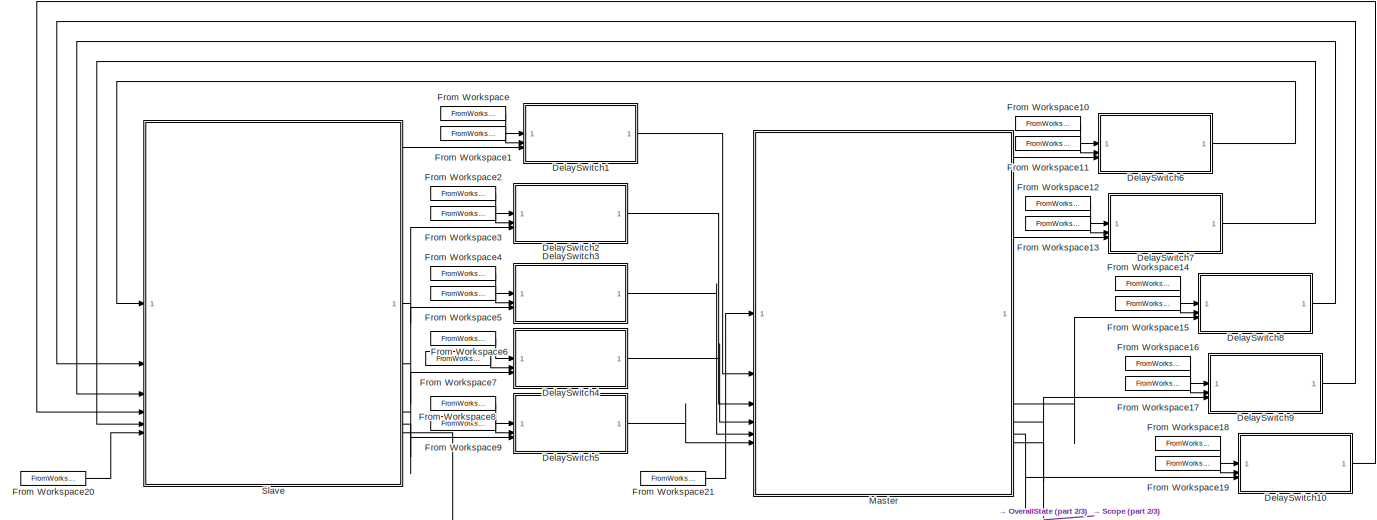
[diagram: root canvas - part 1/3, top center region]
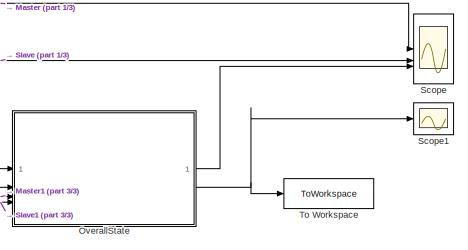
[diagram: root canvas - part 2/3, middle right region]
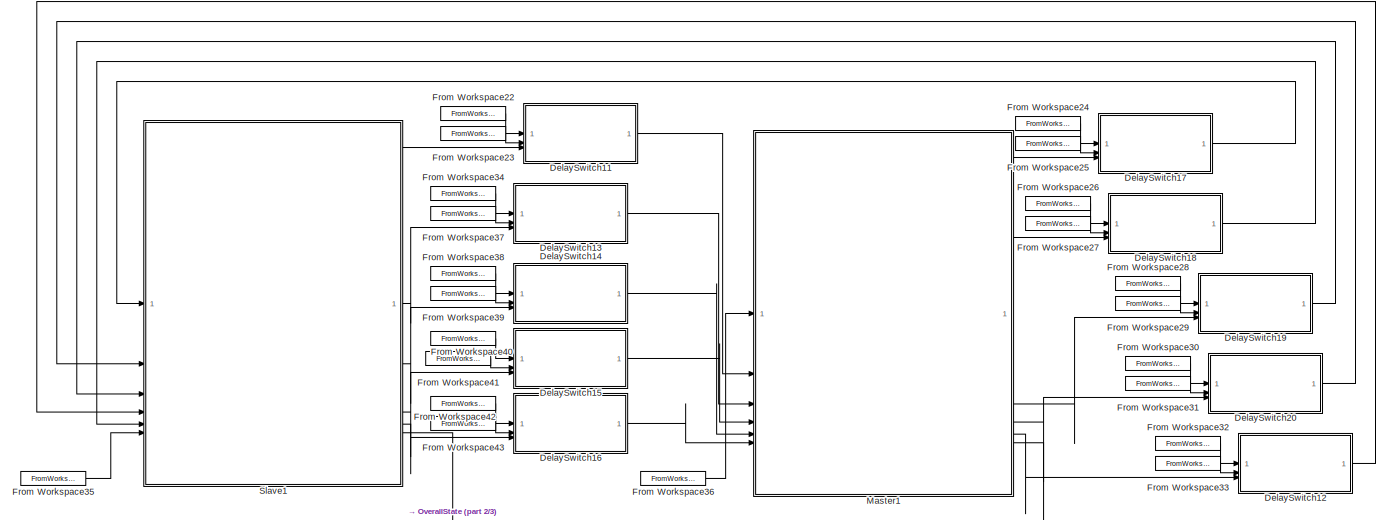
[diagram: root canvas - part 3/3, bottom center region]
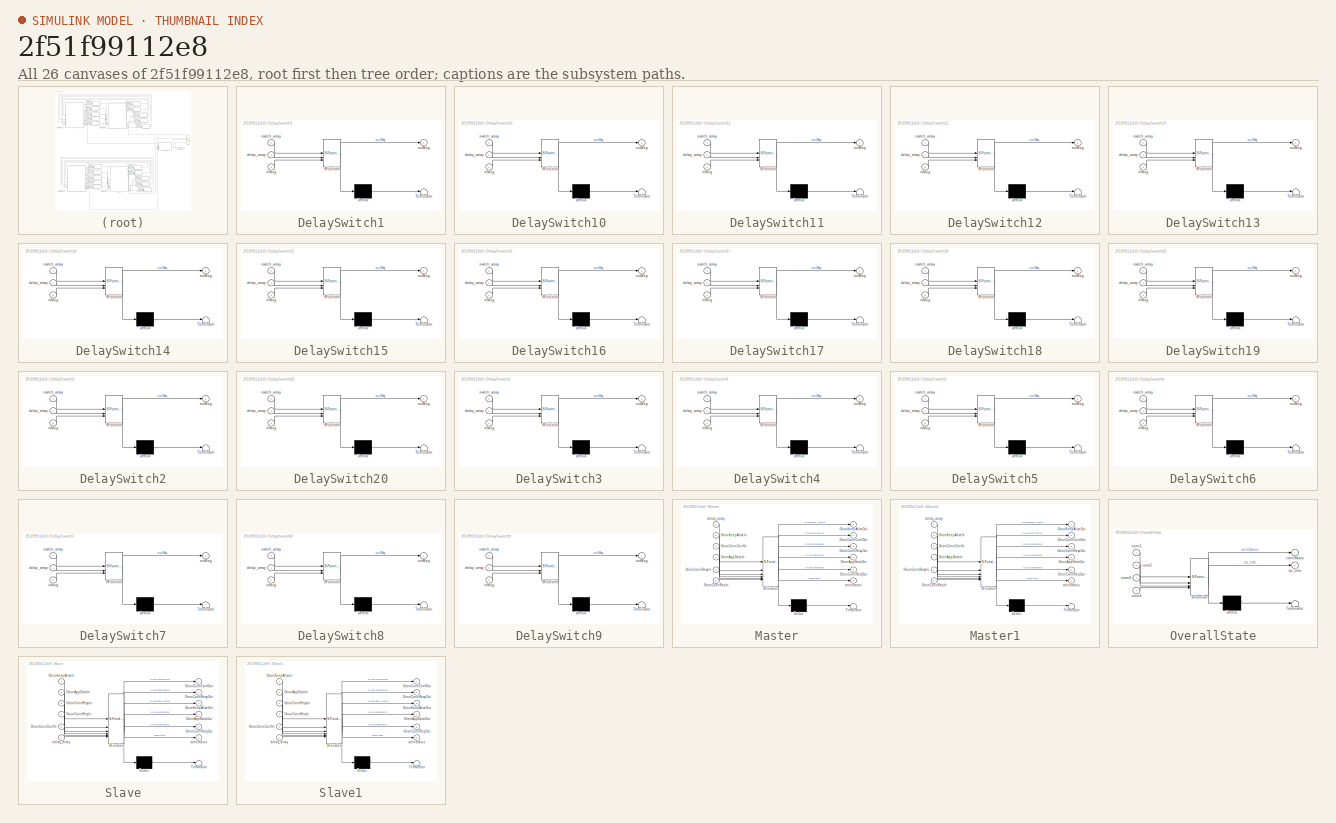
[diagram: thumbnail index - all 26 canvases of the model, root first then tree order]
MODEL slx_2f51f99112e8
KIND model
CONFIG AbsTol = auto
CONFIG EnableMultiTasking = off
CONFIG FixedStep = auto
CONFIG InitFcn = RandStream.setGlobalStream(RandStream('mt19937ar','seed',sum(100*clock)));
CONFIG MaxStep = auto
CONFIG MinStep = auto
CONFIG RelTol = 1e-3
CONFIG SampleTimeConstraint = Unconstrained
CONFIG SolverName = VariableStepAuto
CONFIG StartTime = 0.0
CONFIG StopTime = 30
BLOCK [SubSystem] DelaySwitch1
  ErrorFcn = Stateflow.Translate.translate
  PermitHierarchicalResolution = ExplicitOnly
  SFBlockType = Chart
  TreatAsAtomicUnit = on
BLOCK [Demux] DelaySwitch1/ Demux 
  Outputs = 1
BLOCK [S-Function] DelaySwitch1/ SFunction 
  EnableBusSupport = on
  FunctionName = sf_sfun
  InputPortMessageModes = n,n,m
  OutputPortMessageModes = n,m
  PortCounts = [3 2]
  SFcnIsStateOwnerBlock = off
  SFunctionDeploymentMode = off
  Tag = Stateflow S-Function 1
BLOCK [Terminator] DelaySwitch1/ Terminator 
BLOCK [Inport] DelaySwitch1/delay_array
  Port = 2
BLOCK [Inport] DelaySwitch1/inMsg
  Port = 3
BLOCK [Outport] DelaySwitch1/outMsg
BLOCK [Inport] DelaySwitch1/switch_array
BLOCK [SubSystem] DelaySwitch10
  ErrorFcn = Stateflow.Translate.translate
  PermitHierarchicalResolution = ExplicitOnly
  SFBlockType = Chart
  TreatAsAtomicUnit = on
BLOCK [Demux] DelaySwitch10/ Demux 
  Outputs = 1
BLOCK [S-Function] DelaySwitch10/ SFunction 
  EnableBusSupport = on
  FunctionName = sf_sfun
  InputPortMessageModes = n,n,m
  OutputPortMessageModes = n,m
  PortCounts = [3 2]
  SFcnIsStateOwnerBlock = off
  SFunctionDeploymentMode = off
  Tag = Stateflow S-Function 12
BLOCK [Terminator] DelaySwitch10/ Terminator 
BLOCK [Inport] DelaySwitch10/delay_array
  Port = 2
BLOCK [Inport] DelaySwitch10/inMsg
  Port = 3
BLOCK [Outport] DelaySwitch10/outMsg
BLOCK [Inport] DelaySwitch10/switch_array
BLOCK [SubSystem] DelaySwitch11
  ErrorFcn = Stateflow.Translate.translate
  PermitHierarchicalResolution = ExplicitOnly
  SFBlockType = Chart
  TreatAsAtomicUnit = on
BLOCK [Demux] DelaySwitch11/ Demux 
  Outputs = 1
BLOCK [S-Function] DelaySwitch11/ SFunction 
  EnableBusSupport = on
  FunctionName = sf_sfun
  InputPortMessageModes = n,n,m
  OutputPortMessageModes = n,m
  PortCounts = [3 2]
  SFcnIsStateOwnerBlock = off
  SFunctionDeploymentMode = off
  Tag = Stateflow S-Function 14
BLOCK [Terminator] DelaySwitch11/ Terminator 
BLOCK [Inport] DelaySwitch11/delay_array
  Port = 2
BLOCK [Inport] DelaySwitch11/inMsg
  Port = 3
BLOCK [Outport] DelaySwitch11/outMsg
BLOCK [Inport] DelaySwitch11/switch_array
BLOCK [SubSystem] DelaySwitch12
  ErrorFcn = Stateflow.Translate.translate
  PermitHierarchicalResolution = ExplicitOnly
  SFBlockType = Chart
  TreatAsAtomicUnit = on
BLOCK [Demux] DelaySwitch12/ Demux 
  Outputs = 1
BLOCK [S-Function] DelaySwitch12/ SFunction 
  EnableBusSupport = on
  FunctionName = sf_sfun
  InputPortMessageModes = n,n,m
  OutputPortMessageModes = n,m
  PortCounts = [3 2]
  SFcnIsStateOwnerBlock = off
  SFunctionDeploymentMode = off
  Tag = Stateflow S-Function 15
BLOCK [Terminator] DelaySwitch12/ Terminator 
BLOCK [Inport] DelaySwitch12/delay_array
  Port = 2
BLOCK [Inport] DelaySwitch12/inMsg
  Port = 3
BLOCK [Outport] DelaySwitch12/outMsg
BLOCK [Inport] DelaySwitch12/switch_array
BLOCK [SubSystem] DelaySwitch13
  ErrorFcn = Stateflow.Translate.translate
  PermitHierarchicalResolution = ExplicitOnly
  SFBlockType = Chart
  TreatAsAtomicUnit = on
BLOCK [Demux] DelaySwitch13/ Demux 
  Outputs = 1
BLOCK [S-Function] DelaySwitch13/ SFunction 
  EnableBusSupport = on
  FunctionName = sf_sfun
  InputPortMessageModes = n,n,m
  OutputPortMessageModes = n,m
  PortCounts = [3 2]
  SFcnIsStateOwnerBlock = off
  SFunctionDeploymentMode = off
  Tag = Stateflow S-Function 16
BLOCK [Terminator] DelaySwitch13/ Terminator 
BLOCK [Inport] DelaySwitch13/delay_array
  Port = 2
BLOCK [Inport] DelaySwitch13/inMsg
  Port = 3
BLOCK [Outport] DelaySwitch13/outMsg
BLOCK [Inport] DelaySwitch13/switch_array
BLOCK [SubSystem] DelaySwitch14
  ErrorFcn = Stateflow.Translate.translate
  PermitHierarchicalResolution = ExplicitOnly
  SFBlockType = Chart
  TreatAsAtomicUnit = on
BLOCK [Demux] DelaySwitch14/ Demux 
  Outputs = 1
BLOCK [S-Function] DelaySwitch14/ SFunction 
  EnableBusSupport = on
  FunctionName = sf_sfun
  InputPortMessageModes = n,n,m
  OutputPortMessageModes = n,m
  PortCounts = [3 2]
  SFcnIsStateOwnerBlock = off
  SFunctionDeploymentMode = off
  Tag = Stateflow S-Function 17
BLOCK [Terminator] DelaySwitch14/ Terminator 
BLOCK [Inport] DelaySwitch14/delay_array
  Port = 2
BLOCK [Inport] DelaySwitch14/inMsg
  Port = 3
BLOCK [Outport] DelaySwitch14/outMsg
BLOCK [Inport] DelaySwitch14/switch_array
BLOCK [SubSystem] DelaySwitch15
  ErrorFcn = Stateflow.Translate.translate
  PermitHierarchicalResolution = ExplicitOnly
  SFBlockType = Chart
  TreatAsAtomicUnit = on
BLOCK [Demux] DelaySwitch15/ Demux 
  Outputs = 1
BLOCK [S-Function] DelaySwitch15/ SFunction 
  EnableBusSupport = on
  FunctionName = sf_sfun
  InputPortMessageModes = n,n,m
  OutputPortMessageModes = n,m
  PortCounts = [3 2]
  SFcnIsStateOwnerBlock = off
  SFunctionDeploymentMode = off
  Tag = Stateflow S-Function 18
BLOCK [Terminator] DelaySwitch15/ Terminator 
BLOCK [Inport] DelaySwitch15/delay_array
  Port = 2
BLOCK [Inport] DelaySwitch15/inMsg
  Port = 3
BLOCK [Outport] DelaySwitch15/outMsg
BLOCK [Inport] DelaySwitch15/switch_array
BLOCK [SubSystem] DelaySwitch16
  ErrorFcn = Stateflow.Translate.translate
  PermitHierarchicalResolution = ExplicitOnly
  SFBlockType = Chart
  TreatAsAtomicUnit = on
BLOCK [Demux] DelaySwitch16/ Demux 
  Outputs = 1
BLOCK [S-Function] DelaySwitch16/ SFunction 
  EnableBusSupport = on
  FunctionName = sf_sfun
  InputPortMessageModes = n,n,m
  OutputPortMessageModes = n,m
  PortCounts = [3 2]
  SFcnIsStateOwnerBlock = off
  SFunctionDeploymentMode = off
  Tag = Stateflow S-Function 19
BLOCK [Terminator] DelaySwitch16/ Terminator 
BLOCK [Inport] DelaySwitch16/delay_array
  Port = 2
BLOCK [Inport] DelaySwitch16/inMsg
  Port = 3
BLOCK [Outport] DelaySwitch16/outMsg
BLOCK [Inport] DelaySwitch16/switch_array
BLOCK [SubSystem] DelaySwitch17
  ErrorFcn = Stateflow.Translate.translate
  PermitHierarchicalResolution = ExplicitOnly
  SFBlockType = Chart
  TreatAsAtomicUnit = on
BLOCK [Demux] DelaySwitch17/ Demux 
  Outputs = 1
BLOCK [S-Function] DelaySwitch17/ SFunction 
  EnableBusSupport = on
  FunctionName = sf_sfun
  InputPortMessageModes = n,n,m
  OutputPortMessageModes = n,m
  PortCounts = [3 2]
  SFcnIsStateOwnerBlock = off
  SFunctionDeploymentMode = off
  Tag = Stateflow S-Function 20
BLOCK [Terminator] DelaySwitch17/ Terminator 
BLOCK [Inport] DelaySwitch17/delay_array
  Port = 2
BLOCK [Inport] DelaySwitch17/inMsg
  Port = 3
BLOCK [Outport] DelaySwitch17/outMsg
BLOCK [Inport] DelaySwitch17/switch_array
BLOCK [SubSystem] DelaySwitch18
  ErrorFcn = Stateflow.Translate.translate
  PermitHierarchicalResolution = ExplicitOnly
  SFBlockType = Chart
  TreatAsAtomicUnit = on
BLOCK [Demux] DelaySwitch18/ Demux 
  Outputs = 1
BLOCK [S-Function] DelaySwitch18/ SFunction 
  EnableBusSupport = on
  FunctionName = sf_sfun
  InputPortMessageModes = n,n,m
  OutputPortMessageModes = n,m
  PortCounts = [3 2]
  SFcnIsStateOwnerBlock = off
  SFunctionDeploymentMode = off
  Tag = Stateflow S-Function 21
BLOCK [Terminator] DelaySwitch18/ Terminator 
BLOCK [Inport] DelaySwitch18/delay_array
  Port = 2
BLOCK [Inport] DelaySwitch18/inMsg
  Port = 3
BLOCK [Outport] DelaySwitch18/outMsg
BLOCK [Inport] DelaySwitch18/switch_array
BLOCK [SubSystem] DelaySwitch19
  ErrorFcn = Stateflow.Translate.translate
  PermitHierarchicalResolution = ExplicitOnly
  SFBlockType = Chart
  TreatAsAtomicUnit = on
BLOCK [Demux] DelaySwitch19/ Demux 
  Outputs = 1
BLOCK [S-Function] DelaySwitch19/ SFunction 
  EnableBusSupport = on
  FunctionName = sf_sfun
  InputPortMessageModes = n,n,m
  OutputPortMessageModes = n,m
  PortCounts = [3 2]
  SFcnIsStateOwnerBlock = off
  SFunctionDeploymentMode = off
  Tag = Stateflow S-Function 22
BLOCK [Terminator] DelaySwitch19/ Terminator 
BLOCK [Inport] DelaySwitch19/delay_array
  Port = 2
BLOCK [Inport] DelaySwitch19/inMsg
  Port = 3
BLOCK [Outport] DelaySwitch19/outMsg
BLOCK [Inport] DelaySwitch19/switch_array
BLOCK [SubSystem] DelaySwitch2
  ErrorFcn = Stateflow.Translate.translate
  PermitHierarchicalResolution = ExplicitOnly
  SFBlockType = Chart
  TreatAsAtomicUnit = on
BLOCK [Demux] DelaySwitch2/ Demux 
  Outputs = 1
BLOCK [S-Function] DelaySwitch2/ SFunction 
  EnableBusSupport = on
  FunctionName = sf_sfun
  InputPortMessageModes = n,n,m
  OutputPortMessageModes = n,m
  PortCounts = [3 2]
  SFcnIsStateOwnerBlock = off
  SFunctionDeploymentMode = off
  Tag = Stateflow S-Function 2
BLOCK [Terminator] DelaySwitch2/ Terminator 
BLOCK [Inport] DelaySwitch2/delay_array
  Port = 2
BLOCK [Inport] DelaySwitch2/inMsg
  Port = 3
BLOCK [Outport] DelaySwitch2/outMsg
BLOCK [Inport] DelaySwitch2/switch_array
BLOCK [SubSystem] DelaySwitch20
  ErrorFcn = Stateflow.Translate.translate
  PermitHierarchicalResolution = ExplicitOnly
  SFBlockType = Chart
  TreatAsAtomicUnit = on
BLOCK [Demux] DelaySwitch20/ Demux 
  Outputs = 1
BLOCK [S-Function] DelaySwitch20/ SFunction 
  EnableBusSupport = on
  FunctionName = sf_sfun
  InputPortMessageModes = n,n,m
  OutputPortMessageModes = n,m
  PortCounts = [3 2]
  SFcnIsStateOwnerBlock = off
  SFunctionDeploymentMode = off
  Tag = Stateflow S-Function 23
BLOCK [Terminator] DelaySwitch20/ Terminator 
BLOCK [Inport] DelaySwitch20/delay_array
  Port = 2
BLOCK [Inport] DelaySwitch20/inMsg
  Port = 3
BLOCK [Outport] DelaySwitch20/outMsg
BLOCK [Inport] DelaySwitch20/switch_array
BLOCK [SubSystem] DelaySwitch3
  ErrorFcn = Stateflow.Translate.translate
  PermitHierarchicalResolution = ExplicitOnly
  SFBlockType = Chart
  TreatAsAtomicUnit = on
BLOCK [Demux] DelaySwitch3/ Demux 
  Outputs = 1
BLOCK [S-Function] DelaySwitch3/ SFunction 
  EnableBusSupport = on
  FunctionName = sf_sfun
  InputPortMessageModes = n,n,m
  OutputPortMessageModes = n,m
  PortCounts = [3 2]
  SFcnIsStateOwnerBlock = off
  SFunctionDeploymentMode = off
  Tag = Stateflow S-Function 4
BLOCK [Terminator] DelaySwitch3/ Terminator 
BLOCK [Inport] DelaySwitch3/delay_array
  Port = 2
BLOCK [Inport] DelaySwitch3/inMsg
  Port = 3
BLOCK [Outport] DelaySwitch3/outMsg
BLOCK [Inport] DelaySwitch3/switch_array
BLOCK [SubSystem] DelaySwitch4
  ErrorFcn = Stateflow.Translate.translate
  PermitHierarchicalResolution = ExplicitOnly
  SFBlockType = Chart
  TreatAsAtomicUnit = on
BLOCK [Demux] DelaySwitch4/ Demux 
  Outputs = 1
BLOCK [S-Function] DelaySwitch4/ SFunction 
  EnableBusSupport = on
  FunctionName = sf_sfun
  InputPortMessageModes = n,n,m
  OutputPortMessageModes = n,m
  PortCounts = [3 2]
  SFcnIsStateOwnerBlock = off
  SFunctionDeploymentMode = off
  Tag = Stateflow S-Function 5
BLOCK [Terminator] DelaySwitch4/ Terminator 
BLOCK [Inport] DelaySwitch4/delay_array
  Port = 2
BLOCK [Inport] DelaySwitch4/inMsg
  Port = 3
BLOCK [Outport] DelaySwitch4/outMsg
BLOCK [Inport] DelaySwitch4/switch_array
BLOCK [SubSystem] DelaySwitch5
  ErrorFcn = Stateflow.Translate.translate
  PermitHierarchicalResolution = ExplicitOnly
  SFBlockType = Chart
  TreatAsAtomicUnit = on
BLOCK [Demux] DelaySwitch5/ Demux 
  Outputs = 1
BLOCK [S-Function] DelaySwitch5/ SFunction 
  EnableBusSupport = on
  FunctionName = sf_sfun
  InputPortMessageModes = n,n,m
  OutputPortMessageModes = n,m
  PortCounts = [3 2]
  SFcnIsStateOwnerBlock = off
  SFunctionDeploymentMode = off
  Tag = Stateflow S-Function 6
BLOCK [Terminator] DelaySwitch5/ Terminator 
BLOCK [Inport] DelaySwitch5/delay_array
  Port = 2
BLOCK [Inport] DelaySwitch5/inMsg
  Port = 3
BLOCK [Outport] DelaySwitch5/outMsg
BLOCK [Inport] DelaySwitch5/switch_array
BLOCK [SubSystem] DelaySwitch6
  ErrorFcn = Stateflow.Translate.translate
  PermitHierarchicalResolution = ExplicitOnly
  SFBlockType = Chart
  TreatAsAtomicUnit = on
BLOCK [Demux] DelaySwitch6/ Demux 
  Outputs = 1
BLOCK [S-Function] DelaySwitch6/ SFunction 
  EnableBusSupport = on
  FunctionName = sf_sfun
  InputPortMessageModes = n,n,m
  OutputPortMessageModes = n,m
  PortCounts = [3 2]
  SFcnIsStateOwnerBlock = off
  SFunctionDeploymentMode = off
  Tag = Stateflow S-Function 7
BLOCK [Terminator] DelaySwitch6/ Terminator 
BLOCK [Inport] DelaySwitch6/delay_array
  Port = 2
BLOCK [Inport] DelaySwitch6/inMsg
  Port = 3
BLOCK [Outport] DelaySwitch6/outMsg
BLOCK [Inport] DelaySwitch6/switch_array
BLOCK [SubSystem] DelaySwitch7
  ErrorFcn = Stateflow.Translate.translate
  PermitHierarchicalResolution = ExplicitOnly
  SFBlockType = Chart
  TreatAsAtomicUnit = on
BLOCK [Demux] DelaySwitch7/ Demux 
  Outputs = 1
BLOCK [S-Function] DelaySwitch7/ SFunction 
  EnableBusSupport = on
  FunctionName = sf_sfun
  InputPortMessageModes = n,n,m
  OutputPortMessageModes = n,m
  PortCounts = [3 2]
  SFcnIsStateOwnerBlock = off
  SFunctionDeploymentMode = off
  Tag = Stateflow S-Function 9
BLOCK [Terminator] DelaySwitch7/ Terminator 
BLOCK [Inport] DelaySwitch7/delay_array
  Port = 2
BLOCK [Inport] DelaySwitch7/inMsg
  Port = 3
BLOCK [Outport] DelaySwitch7/outMsg
BLOCK [Inport] DelaySwitch7/switch_array
BLOCK [SubSystem] DelaySwitch8
  ErrorFcn = Stateflow.Translate.translate
  PermitHierarchicalResolution = ExplicitOnly
  SFBlockType = Chart
  TreatAsAtomicUnit = on
BLOCK [Demux] DelaySwitch8/ Demux 
  Outputs = 1
BLOCK [S-Function] DelaySwitch8/ SFunction 
  EnableBusSupport = on
  FunctionName = sf_sfun
  InputPortMessageModes = n,n,m
  OutputPortMessageModes = n,m
  PortCounts = [3 2]
  SFcnIsStateOwnerBlock = off
  SFunctionDeploymentMode = off
  Tag = Stateflow S-Function 10
BLOCK [Terminator] DelaySwitch8/ Terminator 
BLOCK [Inport] DelaySwitch8/delay_array
  Port = 2
BLOCK [Inport] DelaySwitch8/inMsg
  Port = 3
BLOCK [Outport] DelaySwitch8/outMsg
BLOCK [Inport] DelaySwitch8/switch_array
BLOCK [SubSystem] DelaySwitch9
  ErrorFcn = Stateflow.Translate.translate
  PermitHierarchicalResolution = ExplicitOnly
  SFBlockType = Chart
  TreatAsAtomicUnit = on
BLOCK [Demux] DelaySwitch9/ Demux 
  Outputs = 1
BLOCK [S-Function] DelaySwitch9/ SFunction 
  EnableBusSupport = on
  FunctionName = sf_sfun
  InputPortMessageModes = n,n,m
  OutputPortMessageModes = n,m
  PortCounts = [3 2]
  SFcnIsStateOwnerBlock = off
  SFunctionDeploymentMode = off
  Tag = Stateflow S-Function 11
BLOCK [Terminator] DelaySwitch9/ Terminator 
BLOCK [Inport] DelaySwitch9/delay_array
  Port = 2
BLOCK [Inport] DelaySwitch9/inMsg
  Port = 3
BLOCK [Outport] DelaySwitch9/outMsg
BLOCK [Inport] DelaySwitch9/switch_array
BLOCK [FromWorkspace] From Workspace
  Interpolate = off
  OutputAfterFinalValue = Holding final value
  SampleTime = -1
  VariableName = switch_array_1
  ZeroCross = off
BLOCK [FromWorkspace] From Workspace1
  Interpolate = off
  OutputAfterFinalValue = Holding final value
  SampleTime = -1
  VariableName = delay_array_1
  ZeroCross = off
BLOCK [FromWorkspace] From Workspace10
  Interpolate = off
  OutputAfterFinalValue = Holding final value
  SampleTime = -1
  VariableName = switch_array_6
  ZeroCross = off
BLOCK [FromWorkspace] From Workspace11
  Interpolate = off
  OutputAfterFinalValue = Holding final value
  SampleTime = -1
  VariableName = delay_array_6
  ZeroCross = off
BLOCK [FromWorkspace] From Workspace12
  Interpolate = off
  OutputAfterFinalValue = Holding final value
  SampleTime = -1
  VariableName = switch_array_7
  ZeroCross = off
BLOCK [FromWorkspace] From Workspace13
  Interpolate = off
  OutputAfterFinalValue = Holding final value
  SampleTime = -1
  VariableName = delay_array_7
  ZeroCross = off
BLOCK [FromWorkspace] From Workspace14
  Interpolate = off
  OutputAfterFinalValue = Holding final value
  SampleTime = -1
  VariableName = switch_array_8
  ZeroCross = off
BLOCK [FromWorkspace] From Workspace15
  Interpolate = off
  OutputAfterFinalValue = Holding final value
  SampleTime = -1
  VariableName = delay_array_8
  ZeroCross = off
BLOCK [FromWorkspace] From Workspace16
  Interpolate = off
  OutputAfterFinalValue = Holding final value
  SampleTime = -1
  VariableName = switch_array_9
  ZeroCross = off
BLOCK [FromWorkspace] From Workspace17
  Interpolate = off
  OutputAfterFinalValue = Holding final value
  SampleTime = -1
  VariableName = delay_array_9
  ZeroCross = off
BLOCK [FromWorkspace] From Workspace18
  Interpolate = off
  OutputAfterFinalValue = Holding final value
  SampleTime = -1
  VariableName = switch_array_10
  ZeroCross = off
BLOCK [FromWorkspace] From Workspace19
  Interpolate = off
  OutputAfterFinalValue = Holding final value
  SampleTime = -1
  VariableName = delay_array_10
  ZeroCross = off
BLOCK [FromWorkspace] From Workspace2
  Interpolate = off
  OutputAfterFinalValue = Holding final value
  SampleTime = -1
  VariableName = switch_array_2
  ZeroCross = off
BLOCK [FromWorkspace] From Workspace20
  Interpolate = off
  OutputAfterFinalValue = Holding final value
  SampleTime = -1
  VariableName = delay_array_S1
  ZeroCross = off
BLOCK [FromWorkspace] From Workspace21
  Interpolate = off
  OutputAfterFinalValue = Holding final value
  SampleTime = -1
  VariableName = delay_array_M1
  ZeroCross = off
BLOCK [FromWorkspace] From Workspace22
  Interpolate = off
  OutputAfterFinalValue = Holding final value
  SampleTime = -1
  VariableName = switch_array_11
  ZeroCross = off
BLOCK [FromWorkspace] From Workspace23
  Interpolate = off
  OutputAfterFinalValue = Holding final value
  SampleTime = -1
  VariableName = delay_array_11
  ZeroCross = off
BLOCK [FromWorkspace] From Workspace24
  Interpolate = off
  OutputAfterFinalValue = Holding final value
  SampleTime = -1
  VariableName = switch_array_16
  ZeroCross = off
BLOCK [FromWorkspace] From Workspace25
  Interpolate = off
  OutputAfterFinalValue = Holding final value
  SampleTime = -1
  VariableName = delay_array_16
  ZeroCross = off
BLOCK [FromWorkspace] From Workspace26
  Interpolate = off
  OutputAfterFinalValue = Holding final value
  SampleTime = -1
  VariableName = switch_array_17
  ZeroCross = off
BLOCK [FromWorkspace] From Workspace27
  Interpolate = off
  OutputAfterFinalValue = Holding final value
  SampleTime = -1
  VariableName = delay_array_17
  ZeroCross = off
BLOCK [FromWorkspace] From Workspace28
  Interpolate = off
  OutputAfterFinalValue = Holding final value
  SampleTime = -1
  VariableName = switch_array_18
  ZeroCross = off
BLOCK [FromWorkspace] From Workspace29
  Interpolate = off
  OutputAfterFinalValue = Holding final value
  SampleTime = -1
  VariableName = delay_array_18
  ZeroCross = off
BLOCK [FromWorkspace] From Workspace3
  Interpolate = off
  OutputAfterFinalValue = Holding final value
  SampleTime = -1
  VariableName = delay_array_2
  ZeroCross = off
BLOCK [FromWorkspace] From Workspace30
  Interpolate = off
  OutputAfterFinalValue = Holding final value
  SampleTime = -1
  VariableName = switch_array_19
  ZeroCross = off
BLOCK [FromWorkspace] From Workspace31
  Interpolate = off
  OutputAfterFinalValue = Holding final value
  SampleTime = -1
  VariableName = delay_array_19
  ZeroCross = off
BLOCK [FromWorkspace] From Workspace32
  Interpolate = off
  OutputAfterFinalValue = Holding final value
  SampleTime = -1
  VariableName = switch_array_20
  ZeroCross = off
BLOCK [FromWorkspace] From Workspace33
  Interpolate = off
  OutputAfterFinalValue = Holding final value
  SampleTime = -1
  VariableName = delay_array_20
  ZeroCross = off
BLOCK [FromWorkspace] From Workspace34
  Interpolate = off
  OutputAfterFinalValue = Holding final value
  SampleTime = -1
  VariableName = switch_array_12
  ZeroCross = off
BLOCK [FromWorkspace] From Workspace35
  Interpolate = off
  OutputAfterFinalValue = Holding final value
  SampleTime = -1
  VariableName = delay_array_S2
  ZeroCross = off
BLOCK [FromWorkspace] From Workspace36
  Interpolate = off
  OutputAfterFinalValue = Holding final value
  SampleTime = -1
  VariableName = delay_array_M2
  ZeroCross = off
BLOCK [FromWorkspace] From Workspace37
  Interpolate = off
  OutputAfterFinalValue = Holding final value
  SampleTime = -1
  VariableName = delay_array_12
  ZeroCross = off
BLOCK [FromWorkspace] From Workspace38
  Interpolate = off
  OutputAfterFinalValue = Holding final value
  SampleTime = -1
  VariableName = switch_array_13
  ZeroCross = off
BLOCK [FromWorkspace] From Workspace39
  Interpolate = off
  OutputAfterFinalValue = Holding final value
  SampleTime = -1
  VariableName = delay_array_13
  ZeroCross = off
BLOCK [FromWorkspace] From Workspace4
  Interpolate = off
  OutputAfterFinalValue = Holding final value
  SampleTime = -1
  VariableName = switch_array_3
  ZeroCross = off
BLOCK [FromWorkspace] From Workspace40
  Interpolate = off
  OutputAfterFinalValue = Holding final value
  SampleTime = -1
  VariableName = switch_array_14
  ZeroCross = off
BLOCK [FromWorkspace] From Workspace41
  Interpolate = off
  OutputAfterFinalValue = Holding final value
  SampleTime = -1
  VariableName = delay_array_14
  ZeroCross = off
BLOCK [FromWorkspace] From Workspace42
  Interpolate = off
  OutputAfterFinalValue = Holding final value
  SampleTime = -1
  VariableName = switch_array_15
  ZeroCross = off
BLOCK [FromWorkspace] From Workspace43
  Interpolate = off
  OutputAfterFinalValue = Holding final value
  SampleTime = -1
  VariableName = delay_array_15
  ZeroCross = off
BLOCK [FromWorkspace] From Workspace5
  Interpolate = off
  OutputAfterFinalValue = Holding final value
  SampleTime = -1
  VariableName = delay_array_3
  ZeroCross = off
BLOCK [FromWorkspace] From Workspace6
  Interpolate = off
  OutputAfterFinalValue = Holding final value
  SampleTime = -1
  VariableName = switch_array_4
  ZeroCross = off
BLOCK [FromWorkspace] From Workspace7
  Interpolate = off
  OutputAfterFinalValue = Holding final value
  SampleTime = -1
  VariableName = delay_array_4
  ZeroCross = off
BLOCK [FromWorkspace] From Workspace8
  Interpolate = off
  OutputAfterFinalValue = Holding final value
  SampleTime = -1
  VariableName = switch_array_5
  ZeroCross = off
BLOCK [FromWorkspace] From Workspace9
  Interpolate = off
  OutputAfterFinalValue = Holding final value
  SampleTime = -1
  VariableName = delay_array_5
  ZeroCross = off
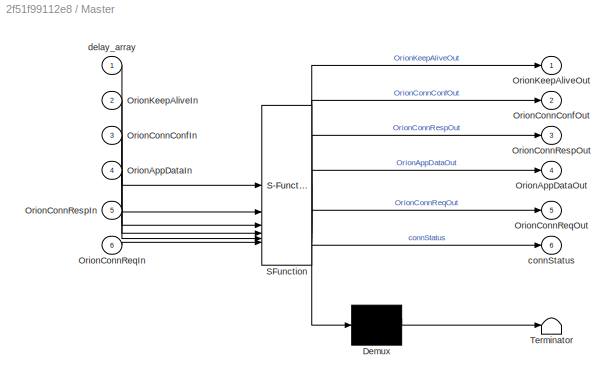
BLOCK [SubSystem] Master
  ErrorFcn = Stateflow.Translate.translate
  PermitHierarchicalResolution = ExplicitOnly
  PortSchema = {"entries":[{"content":{"sides":[{"content":{"connectorIds":["In2","In3","In5","In4","In6","In1"]},"type":"ConnectorPlacement.EquallySpacedRectSide","uuid":"93190a42-59cb-4d31-aa72-080cef5549db"},{"content":{"connectorIds":["Out1","Out2","Out3","Out4","Out5","Out6"],"side":"RIGHT"},"type":"ConnectorPlacement.EquallySpacedRectSide","uuid":"4a04e977-42e8-4d3e-8e66-86884aeb71d4"},{"content":{"side":"...<+413ch>
  SFBlockType = Chart
  TreatAsAtomicUnit = on
BLOCK [Demux] Master/ Demux 
  Outputs = 1
BLOCK [S-Function] Master/ SFunction 
  EnableBusSupport = on
  FunctionName = sf_sfun
  InputPortMessageModes = n,m,m,m,m,m
  OutputPortMessageModes = n,m,m,m,m,m,n
  PortCounts = [6 7]
  SFcnIsStateOwnerBlock = off
  SFunctionDeploymentMode = off
  Tag = Stateflow S-Function 3
BLOCK [Terminator] Master/ Terminator 
BLOCK [Inport] Master/OrionAppDataIn
  Port = 4
BLOCK [Outport] Master/OrionAppDataOut
  Port = 4
BLOCK [Inport] Master/OrionConnConfIn
  Port = 3
BLOCK [Outport] Master/OrionConnConfOut
  Port = 2
BLOCK [Inport] Master/OrionConnReqIn
  Port = 6
BLOCK [Outport] Master/OrionConnReqOut
  Port = 5
BLOCK [Inport] Master/OrionConnRespIn
  Port = 5
BLOCK [Outport] Master/OrionConnRespOut
  Port = 3
BLOCK [Inport] Master/OrionKeepAliveIn
  Port = 2
BLOCK [Outport] Master/OrionKeepAliveOut
BLOCK [Outport] Master/connStatus
  Port = 6
BLOCK [Inport] Master/delay_array
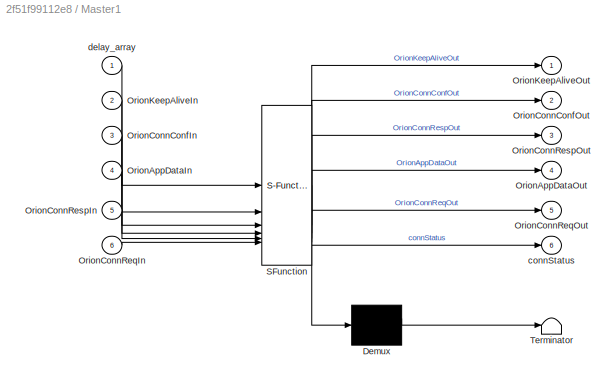
BLOCK [SubSystem] Master1
  ErrorFcn = Stateflow.Translate.translate
  PermitHierarchicalResolution = ExplicitOnly
  PortSchema = {"entries":[{"content":{"sides":[{"content":{"connectorIds":["In2","In3","In5","In4","In6","In1"]},"type":"ConnectorPlacement.EquallySpacedRectSide","uuid":"93190a42-59cb-4d31-aa72-080cef5549db"},{"content":{"connectorIds":["Out1","Out2","Out3","Out4","Out5","Out6"],"side":"RIGHT"},"type":"ConnectorPlacement.EquallySpacedRectSide","uuid":"4a04e977-42e8-4d3e-8e66-86884aeb71d4"},{"content":{"side":"...<+413ch>
  SFBlockType = Chart
  TreatAsAtomicUnit = on
BLOCK [Demux] Master1/ Demux 
  Outputs = 1
BLOCK [S-Function] Master1/ SFunction 
  EnableBusSupport = on
  FunctionName = sf_sfun
  InputPortMessageModes = n,m,m,m,m,m
  OutputPortMessageModes = n,m,m,m,m,m,n
  PortCounts = [6 7]
  SFcnIsStateOwnerBlock = off
  SFunctionDeploymentMode = off
  Tag = Stateflow S-Function 24
BLOCK [Terminator] Master1/ Terminator 
BLOCK [Inport] Master1/OrionAppDataIn
  Port = 4
BLOCK [Outport] Master1/OrionAppDataOut
  Port = 4
BLOCK [Inport] Master1/OrionConnConfIn
  Port = 3
BLOCK [Outport] Master1/OrionConnConfOut
  Port = 2
BLOCK [Inport] Master1/OrionConnReqIn
  Port = 6
BLOCK [Outport] Master1/OrionConnReqOut
  Port = 5
BLOCK [Inport] Master1/OrionConnRespIn
  Port = 5
BLOCK [Outport] Master1/OrionConnRespOut
  Port = 3
BLOCK [Inport] Master1/OrionKeepAliveIn
  Port = 2
BLOCK [Outport] Master1/OrionKeepAliveOut
BLOCK [Outport] Master1/connStatus
  Port = 6
BLOCK [Inport] Master1/delay_array
BLOCK [SubSystem] OverallState
  ErrorFcn = Stateflow.Translate.translate
  PermitHierarchicalResolution = ExplicitOnly
  SFBlockType = Chart
  TreatAsAtomicUnit = on
BLOCK [Demux] OverallState/ Demux 
  Outputs = 1
BLOCK [S-Function] OverallState/ SFunction 
  EnableBusSupport = on
  FunctionName = sf_sfun
  PortCounts = [4 3]
  SFcnIsStateOwnerBlock = off
  SFunctionDeploymentMode = off
  Tag = Stateflow S-Function 13
BLOCK [Terminator] OverallState/ Terminator 
BLOCK [Inport] OverallState/conn1
BLOCK [Inport] OverallState/conn2
  Port = 2
BLOCK [Inport] OverallState/conn3
  Port = 3
BLOCK [Inport] OverallState/conn4
  Port = 4
BLOCK [Outport] OverallState/connStatus
BLOCK [Outport] OverallState/op_time
  Port = 2
BLOCK [Scope] Scope
  Floating = off
  NumInputPorts = 3
  ScopeSpecificationString = Simulink.scopes.TimeScopeBlockCfg('CurrentConfiguration', extmgr.ConfigurationSet(extmgr.Configuration('Core','General UI',true),extmgr.Configuration('Core','Source UI',true),extmgr.Configuration('Sources','WiredSimulink',true),extmgr.Configuration('Visuals','Time Domain',true,'SerializedDisplays',{struct('MinYLimReal','-0.25','MaxYLimReal','2.25','YLabelReal','','MinYLimMag','0.00000','MaxYLimMag...<+1329ch>
BLOCK [Scope] Scope1
  Floating = off
  NumInputPorts = 1
  ScopeSpecificationString = Simulink.scopes.TimeScopeBlockCfg('CurrentConfiguration', extmgr.ConfigurationSet(extmgr.Configuration('Core','General UI',true),extmgr.Configuration('Core','Source UI',true),extmgr.Configuration('Sources','WiredSimulink',true,'DataLoggingVariableName','ScopeData1'),extmgr.Configuration('Visuals','Time Domain',true,'SerializedDisplays',{struct('MinYLimReal','-2417.99419','MaxYLimReal','21761.94769...<+1405ch>
BLOCK [SubSystem] Slave
  ErrorFcn = Stateflow.Translate.translate
  PermitHierarchicalResolution = ExplicitOnly
  PortSchema = {"entries":[{"content":{"sides":[{"content":{"connectorIds":["In1","In5","In3","In2","In4","In6"]},"type":"ConnectorPlacement.EquallySpacedRectSide","uuid":"93190a42-59cb-4d31-aa72-080cef5549db"},{"content":{"connectorIds":["Out3","Out1","Out2","Out4","Out5","Out6"],"side":"RIGHT"},"type":"ConnectorPlacement.EquallySpacedRectSide","uuid":"4a04e977-42e8-4d3e-8e66-86884aeb71d4"},{"content":{"side":"...<+287ch>
  SFBlockType = Chart
  TreatAsAtomicUnit = on
BLOCK [Demux] Slave/ Demux 
  Outputs = 1
BLOCK [S-Function] Slave/ SFunction 
  EnableBusSupport = on
  FunctionName = sf_sfun
  InputPortMessageModes = m,m,m,m,m,n
  OutputPortMessageModes = n,m,m,m,m,m,n
  PortCounts = [6 7]
  SFcnIsStateOwnerBlock = off
  SFunctionDeploymentMode = off
  Tag = Stateflow S-Function 8
BLOCK [Terminator] Slave/ Terminator 
BLOCK [Inport] Slave/OrionAppDataIn
  Port = 2
BLOCK [Outport] Slave/OrionAppDataOut
  Port = 4
BLOCK [Inport] Slave/OrionConnConfIn
  Port = 5
BLOCK [Outport] Slave/OrionConnConfOut
BLOCK [Inport] Slave/OrionConnReqIn
  Port = 4
BLOCK [Outport] Slave/OrionConnReqOut
  Port = 5
BLOCK [Inport] Slave/OrionConnRespIn
  Port = 3
BLOCK [Outport] Slave/OrionConnRespOut
  Port = 2
BLOCK [Inport] Slave/OrionKeepAliveIn
BLOCK [Outport] Slave/OrionKeepAliveOut
  Port = 3
BLOCK [Outport] Slave/connStatus
  Port = 6
BLOCK [Inport] Slave/delay_array
  Port = 6
BLOCK [SubSystem] Slave1
  ErrorFcn = Stateflow.Translate.translate
  PermitHierarchicalResolution = ExplicitOnly
  PortSchema = {"entries":[{"content":{"sides":[{"content":{"connectorIds":["In1","In5","In3","In2","In4","In6"]},"type":"ConnectorPlacement.EquallySpacedRectSide","uuid":"93190a42-59cb-4d31-aa72-080cef5549db"},{"content":{"connectorIds":["Out3","Out1","Out2","Out4","Out5","Out6"],"side":"RIGHT"},"type":"ConnectorPlacement.EquallySpacedRectSide","uuid":"4a04e977-42e8-4d3e-8e66-86884aeb71d4"},{"content":{"side":"...<+287ch>
  SFBlockType = Chart
  TreatAsAtomicUnit = on
BLOCK [Demux] Slave1/ Demux 
  Outputs = 1
BLOCK [S-Function] Slave1/ SFunction 
  EnableBusSupport = on
  FunctionName = sf_sfun
  InputPortMessageModes = m,m,m,m,m,n
  OutputPortMessageModes = n,m,m,m,m,m,n
  PortCounts = [6 7]
  SFcnIsStateOwnerBlock = off
  SFunctionDeploymentMode = off
  Tag = Stateflow S-Function 25
BLOCK [Terminator] Slave1/ Terminator 
BLOCK [Inport] Slave1/OrionAppDataIn
  Port = 2
BLOCK [Outport] Slave1/OrionAppDataOut
  Port = 4
BLOCK [Inport] Slave1/OrionConnConfIn
  Port = 5
BLOCK [Outport] Slave1/OrionConnConfOut
BLOCK [Inport] Slave1/OrionConnReqIn
  Port = 4
BLOCK [Outport] Slave1/OrionConnReqOut
  Port = 5
BLOCK [Inport] Slave1/OrionConnRespIn
  Port = 3
BLOCK [Outport] Slave1/OrionConnRespOut
  Port = 2
BLOCK [Inport] Slave1/OrionKeepAliveIn
BLOCK [Outport] Slave1/OrionKeepAliveOut
  Port = 3
BLOCK [Outport] Slave1/connStatus
  Port = 6
BLOCK [Inport] Slave1/delay_array
  Port = 6
BLOCK [ToWorkspace] To Workspace
  FixptAsFi = on
  MaxDataPoints = inf
  SampleTime = -1
  SaveFormat = Timeseries
  VariableName = conn_time
LINE DelaySwitch10:1 -> Slave:4
LINE DelaySwitch11:1 -> Master1:2
LINE DelaySwitch12:1 -> Slave1:4
LINE DelaySwitch13:1 -> Master1:3
LINE DelaySwitch14:1 -> Master1:5
LINE DelaySwitch15:1 -> Master1:4
LINE DelaySwitch16:1 -> Master1:6
LINE DelaySwitch17:1 -> Slave1:1
LINE DelaySwitch18:1 -> Slave1:5
LINE DelaySwitch19:1 -> Slave1:3
LINE DelaySwitch1:1 -> Master:2
LINE DelaySwitch20:1 -> Slave1:2
LINE DelaySwitch2:1 -> Master:3
LINE DelaySwitch3:1 -> Master:5
LINE DelaySwitch4:1 -> Master:4
LINE DelaySwitch5:1 -> Master:6
LINE DelaySwitch6:1 -> Slave:1
LINE DelaySwitch7:1 -> Slave:5
LINE DelaySwitch8:1 -> Slave:3
LINE DelaySwitch9:1 -> Slave:2
LINE From Workspace10:1 -> DelaySwitch6:1
LINE From Workspace11:1 -> DelaySwitch6:2
LINE From Workspace12:1 -> DelaySwitch7:1
LINE From Workspace13:1 -> DelaySwitch7:2
LINE From Workspace14:1 -> DelaySwitch8:1
LINE From Workspace15:1 -> DelaySwitch8:2
LINE From Workspace16:1 -> DelaySwitch9:1
LINE From Workspace17:1 -> DelaySwitch9:2
LINE From Workspace18:1 -> DelaySwitch10:1
LINE From Workspace19:1 -> DelaySwitch10:2
LINE From Workspace1:1 -> DelaySwitch1:2
LINE From Workspace20:1 -> Slave:6
LINE From Workspace21:1 -> Master:1
LINE From Workspace22:1 -> DelaySwitch11:1
LINE From Workspace23:1 -> DelaySwitch11:2
LINE From Workspace24:1 -> DelaySwitch17:1
LINE From Workspace25:1 -> DelaySwitch17:2
LINE From Workspace26:1 -> DelaySwitch18:1
LINE From Workspace27:1 -> DelaySwitch18:2
LINE From Workspace28:1 -> DelaySwitch19:1
LINE From Workspace29:1 -> DelaySwitch19:2
LINE From Workspace2:1 -> DelaySwitch2:1
LINE From Workspace30:1 -> DelaySwitch20:1
LINE From Workspace31:1 -> DelaySwitch20:2
LINE From Workspace32:1 -> DelaySwitch12:1
LINE From Workspace33:1 -> DelaySwitch12:2
LINE From Workspace34:1 -> DelaySwitch13:1
LINE From Workspace35:1 -> Slave1:6
LINE From Workspace36:1 -> Master1:1
LINE From Workspace37:1 -> DelaySwitch13:2
LINE From Workspace38:1 -> DelaySwitch14:1
LINE From Workspace39:1 -> DelaySwitch14:2
LINE From Workspace3:1 -> DelaySwitch2:2
LINE From Workspace40:1 -> DelaySwitch15:1
LINE From Workspace41:1 -> DelaySwitch15:2
LINE From Workspace42:1 -> DelaySwitch16:1
LINE From Workspace43:1 -> DelaySwitch16:2
LINE From Workspace4:1 -> DelaySwitch3:1
LINE From Workspace5:1 -> DelaySwitch3:2
LINE From Workspace6:1 -> DelaySwitch4:1
LINE From Workspace7:1 -> DelaySwitch4:2
LINE From Workspace8:1 -> DelaySwitch5:1
LINE From Workspace9:1 -> DelaySwitch5:2
LINE From Workspace:1 -> DelaySwitch1:1
LINE Master1:1 -> DelaySwitch17:3
LINE Master1:2 -> DelaySwitch18:3
LINE Master1:3 -> DelaySwitch19:3
LINE Master1:4 -> DelaySwitch20:3
LINE Master1:5 -> DelaySwitch12:3
LINE Master1:6 -> OverallState:3
LINE Master:1 -> DelaySwitch6:3
LINE Master:2 -> DelaySwitch7:3
LINE Master:3 -> DelaySwitch8:3
LINE Master:4 -> DelaySwitch9:3
LINE Master:5 -> DelaySwitch10:3
NET Master:6 -> OverallState:1, Scope:1
LINE OverallState:1 -> Scope:3
NET OverallState:2 -> Scope1:1, To Workspace:1
LINE Slave1:1 -> DelaySwitch13:3
LINE Slave1:2 -> DelaySwitch14:3
LINE Slave1:3 -> DelaySwitch11:3
LINE Slave1:4 -> DelaySwitch15:3
LINE Slave1:5 -> DelaySwitch16:3
LINE Slave1:6 -> OverallState:4
LINE Slave:1 -> DelaySwitch2:3
LINE Slave:2 -> DelaySwitch3:3
LINE Slave:3 -> DelaySwitch1:3
LINE Slave:4 -> DelaySwitch4:3
LINE Slave:5 -> DelaySwitch5:3
NET Slave:6 -> OverallState:2, Scope:2
note: NET lines group one-source signal fan-out (src -> all destinations, sorted); 1:1 wires keep LINE
CHART DelaySwitch3 states=2 transitions=5
  STATE_LABEL 'Operation'
  STATE_LABEL 'Sending'
CHART DelaySwitch4 states=2 transitions=5
  STATE_LABEL 'Operation'
  STATE_LABEL 'Sending'
CHART DelaySwitch5 states=2 transitions=5
  STATE_LABEL 'Operation'
  STATE_LABEL 'Sending'
CHART DelaySwitch6 states=2 transitions=5
  STATE_LABEL 'Operation'
  STATE_LABEL 'Sending'
CHART Slave states=7 transitions=20
  STATE_LABEL 'Connected\nentry:\nconnStatus=2;'
  STATE_LABEL 'KeepAliveSendTimeout'
  STATE_LABEL 'KeepAliveSend'
  STATE_LABEL 'after(delay_array(i)*5,msec)\n {OrionKeepAliveOut.data=0;\nsend(OrionKeepAliveOut);i = i + 1;}'
  STATE_LABEL 'SendDataIn\n{OrionAppDataOut.data=0;\nsend(OrionAppDataOut);}'
  STATE_LABEL 'KeepAliveRecieveTimeout'
  STATE_LABEL 'KeepAlineRec'
  STATE_LABEL 'OrionKeepAliveIn'
  STATE_LABEL 'OrionAppDataIn'
  STATE_LABEL 'KeepAliveSendTimeout'
  STATE_LABEL 'KeepAliveSend'
  STATE_LABEL 'after(delay_array(i)*5,msec)\n {OrionKeepAliveOut.data=0;\nsend(OrionKeepAliveOut);i = i + 1;}'
  STATE_LABEL 'SendDataIn\n{OrionAppDataOut.data=0;\nsend(OrionAppDataOut);}'
  STATE_LABEL 'KeepAliveSend'
  STATE_LABEL 'KeepAliveRecieveTimeout'
  STATE_LABEL 'KeepAlineRec'
  STATE_LABEL 'OrionKeepAliveIn'
  STATE_LABEL 'OrionAppDataIn'
  STATE_LABEL 'KeepAlineRec'
  STATE_LABEL 'Closed\nentry:\nconnStatus=0;'
  STATE_LABEL 'Connecting\nentry:\nconnStatus=1;'
CHART DelaySwitch7 states=2 transitions=5
  STATE_LABEL 'Operation'
  STATE_LABEL 'Sending'
CHART DelaySwitch8 states=2 transitions=5
  STATE_LABEL 'Operation'
  STATE_LABEL 'Sending'
CHART DelaySwitch9 states=2 transitions=5
  STATE_LABEL 'Operation'
  STATE_LABEL 'Sending'
CHART DelaySwitch10 states=2 transitions=5
  STATE_LABEL 'Operation'
  STATE_LABEL 'Sending'
CHART OverallState states=2 transitions=2
  STATE_LABEL 'NotConnected\nop_time=temporalCount(msec);'
  STATE_LABEL 'Connected\nentry:\nconnStatus=1;'
CHART DelaySwitch11 states=2 transitions=5
  STATE_LABEL 'Operation'
  STATE_LABEL 'Sending'
CHART DelaySwitch12 states=2 transitions=5
  STATE_LABEL 'Operation'
  STATE_LABEL 'Sending'
CHART DelaySwitch13 states=2 transitions=5
  STATE_LABEL 'Operation'
  STATE_LABEL 'Sending'
CHART DelaySwitch14 states=2 transitions=5
  STATE_LABEL 'Operation'
  STATE_LABEL 'Sending'
CHART DelaySwitch15 states=2 transitions=5
  STATE_LABEL 'Operation'
  STATE_LABEL 'Sending'
CHART DelaySwitch16 states=2 transitions=5
  STATE_LABEL 'Operation'
  STATE_LABEL 'Sending'
CHART DelaySwitch17 states=2 transitions=5
  STATE_LABEL 'Operation'
  STATE_LABEL 'Sending'
CHART DelaySwitch18 states=2 transitions=5
  STATE_LABEL 'Operation'
  STATE_LABEL 'Sending'
CHART DelaySwitch19 states=2 transitions=5
  STATE_LABEL 'Operation'
  STATE_LABEL 'Sending'
CHART DelaySwitch20 states=2 transitions=5
  STATE_LABEL 'Operation'
  STATE_LABEL 'Sending'
CHART Master1 states=7 transitions=20
  STATE_LABEL 'Connected\nentry:\nconnStatus=2;'
  STATE_LABEL 'KeepAliveSendTimeout'
  STATE_LABEL 'KeepAliveSend'
  STATE_LABEL 'after(delay_array(i)*5,msec)\n{OrionKeepAliveOut.data=0;\nsend(OrionKeepAliveOut);\ni = i + 1;}'
  STATE_LABEL 'SendDataIn\n{OrionAppDataOut.data=0;\nsend(OrionAppDataOut);}'
  STATE_LABEL 'KeepAliveRecieveTimeout'
  STATE_LABEL 'KeepAlineRec'
  STATE_LABEL 'OrionKeepAliveIn'
  STATE_LABEL 'OrionAppDataIn'
  STATE_LABEL 'KeepAliveSendTimeout'
  STATE_LABEL 'KeepAliveSend'
  STATE_LABEL 'after(delay_array(i)*5,msec)\n{OrionKeepAliveOut.data=0;\nsend(OrionKeepAliveOut);\ni = i + 1;}'
  STATE_LABEL 'SendDataIn\n{OrionAppDataOut.data=0;\nsend(OrionAppDataOut);}'
  STATE_LABEL 'KeepAliveSend'
  STATE_LABEL 'KeepAliveRecieveTimeout'
  STATE_LABEL 'KeepAlineRec'
  STATE_LABEL 'OrionKeepAliveIn'
  STATE_LABEL 'OrionAppDataIn'
  STATE_LABEL 'KeepAlineRec'
  STATE_LABEL 'Closed\nentry:\nconnStatus=0;\n'
  STATE_LABEL 'Connecting\nentry:\nconnStatus=1;'
CHART Slave1 states=7 transitions=20
  STATE_LABEL 'Connected\nentry:\nconnStatus=2;'
  STATE_LABEL 'KeepAliveSendTimeout'
  STATE_LABEL 'KeepAliveSend'
  STATE_LABEL 'after(delay_array(i)*5,msec)\n {OrionKeepAliveOut.data=0;\nsend(OrionKeepAliveOut);i = i + 1;}'
  STATE_LABEL 'SendDataIn\n{OrionAppDataOut.data=0;\nsend(OrionAppDataOut);}'
  STATE_LABEL 'KeepAliveRecieveTimeout'
  STATE_LABEL 'KeepAlineRec'
  STATE_LABEL 'OrionKeepAliveIn'
  STATE_LABEL 'OrionAppDataIn'
  STATE_LABEL 'KeepAliveSendTimeout'
  STATE_LABEL 'KeepAliveSend'
  STATE_LABEL 'after(delay_array(i)*5,msec)\n {OrionKeepAliveOut.data=0;\nsend(OrionKeepAliveOut);i = i + 1;}'
  STATE_LABEL 'SendDataIn\n{OrionAppDataOut.data=0;\nsend(OrionAppDataOut);}'
  STATE_LABEL 'KeepAliveSend'
  STATE_LABEL 'KeepAliveRecieveTimeout'
  STATE_LABEL 'KeepAlineRec'
  STATE_LABEL 'OrionKeepAliveIn'
  STATE_LABEL 'OrionAppDataIn'
  STATE_LABEL 'KeepAlineRec'
  STATE_LABEL 'Closed\nentry:\nconnStatus=0;'
  STATE_LABEL 'Connecting\nentry:\nconnStatus=1;'
CHART DelaySwitch1 states=2 transitions=5
  STATE_LABEL 'Operation'
  STATE_LABEL 'Sending'
CHART DelaySwitch2 states=2 transitions=5
  STATE_LABEL 'Operation'
  STATE_LABEL 'Sending'
CHART Master states=7 transitions=20
  STATE_LABEL 'Connected\nentry:\nconnStatus=2;'
  STATE_LABEL 'KeepAliveSendTimeout'
  STATE_LABEL 'KeepAliveSend'
  STATE_LABEL 'after(delay_array(i)*5,msec)\n{OrionKeepAliveOut.data=0;\nsend(OrionKeepAliveOut);\ni = i + 1;}'
  STATE_LABEL 'SendDataIn\n{OrionAppDataOut.data=0;\nsend(OrionAppDataOut);}'
  STATE_LABEL 'KeepAliveRecieveTimeout'
  STATE_LABEL 'KeepAlineRec'
  STATE_LABEL 'OrionKeepAliveIn'
  STATE_LABEL 'OrionAppDataIn'
  STATE_LABEL 'KeepAliveSendTimeout'
  STATE_LABEL 'KeepAliveSend'
  STATE_LABEL 'after(delay_array(i)*5,msec)\n{OrionKeepAliveOut.data=0;\nsend(OrionKeepAliveOut);\ni = i + 1;}'
  STATE_LABEL 'SendDataIn\n{OrionAppDataOut.data=0;\nsend(OrionAppDataOut);}'
  STATE_LABEL 'KeepAliveSend'
  STATE_LABEL 'KeepAliveRecieveTimeout'
  STATE_LABEL 'KeepAlineRec'
  STATE_LABEL 'OrionKeepAliveIn'
  STATE_LABEL 'OrionAppDataIn'
  STATE_LABEL 'KeepAlineRec'
  STATE_LABEL 'Closed\nentry:\nconnStatus=0;\n'
  STATE_LABEL 'Connecting\nentry:\nconnStatus=1;'
CHART  states=0 transitions=0
CHART  states=0 transitions=0
CHART  states=0 transitions=0
CHART  states=0 transitions=0
CHART  states=0 transitions=0
CHART  states=0 transitions=0
CHART  states=0 transitions=0
CHART  states=0 transitions=0
CHART  states=0 transitions=0
CHART  states=0 transitions=0
CHART  states=0 transitions=0
CHART  states=0 transitions=0
CHART  states=0 transitions=0
CHART  states=0 transitions=0
CHART  states=0 transitions=0
CHART  states=0 transitions=0
CHART  states=0 transitions=0
CHART  states=0 transitions=0
CHART  states=0 transitions=0
CHART  states=0 transitions=0
CHART  states=0 transitions=0
CHART  states=0 transitions=0
CHART  states=0 transitions=0
CHART  states=0 transitions=0
CHART  states=0 transitions=0
